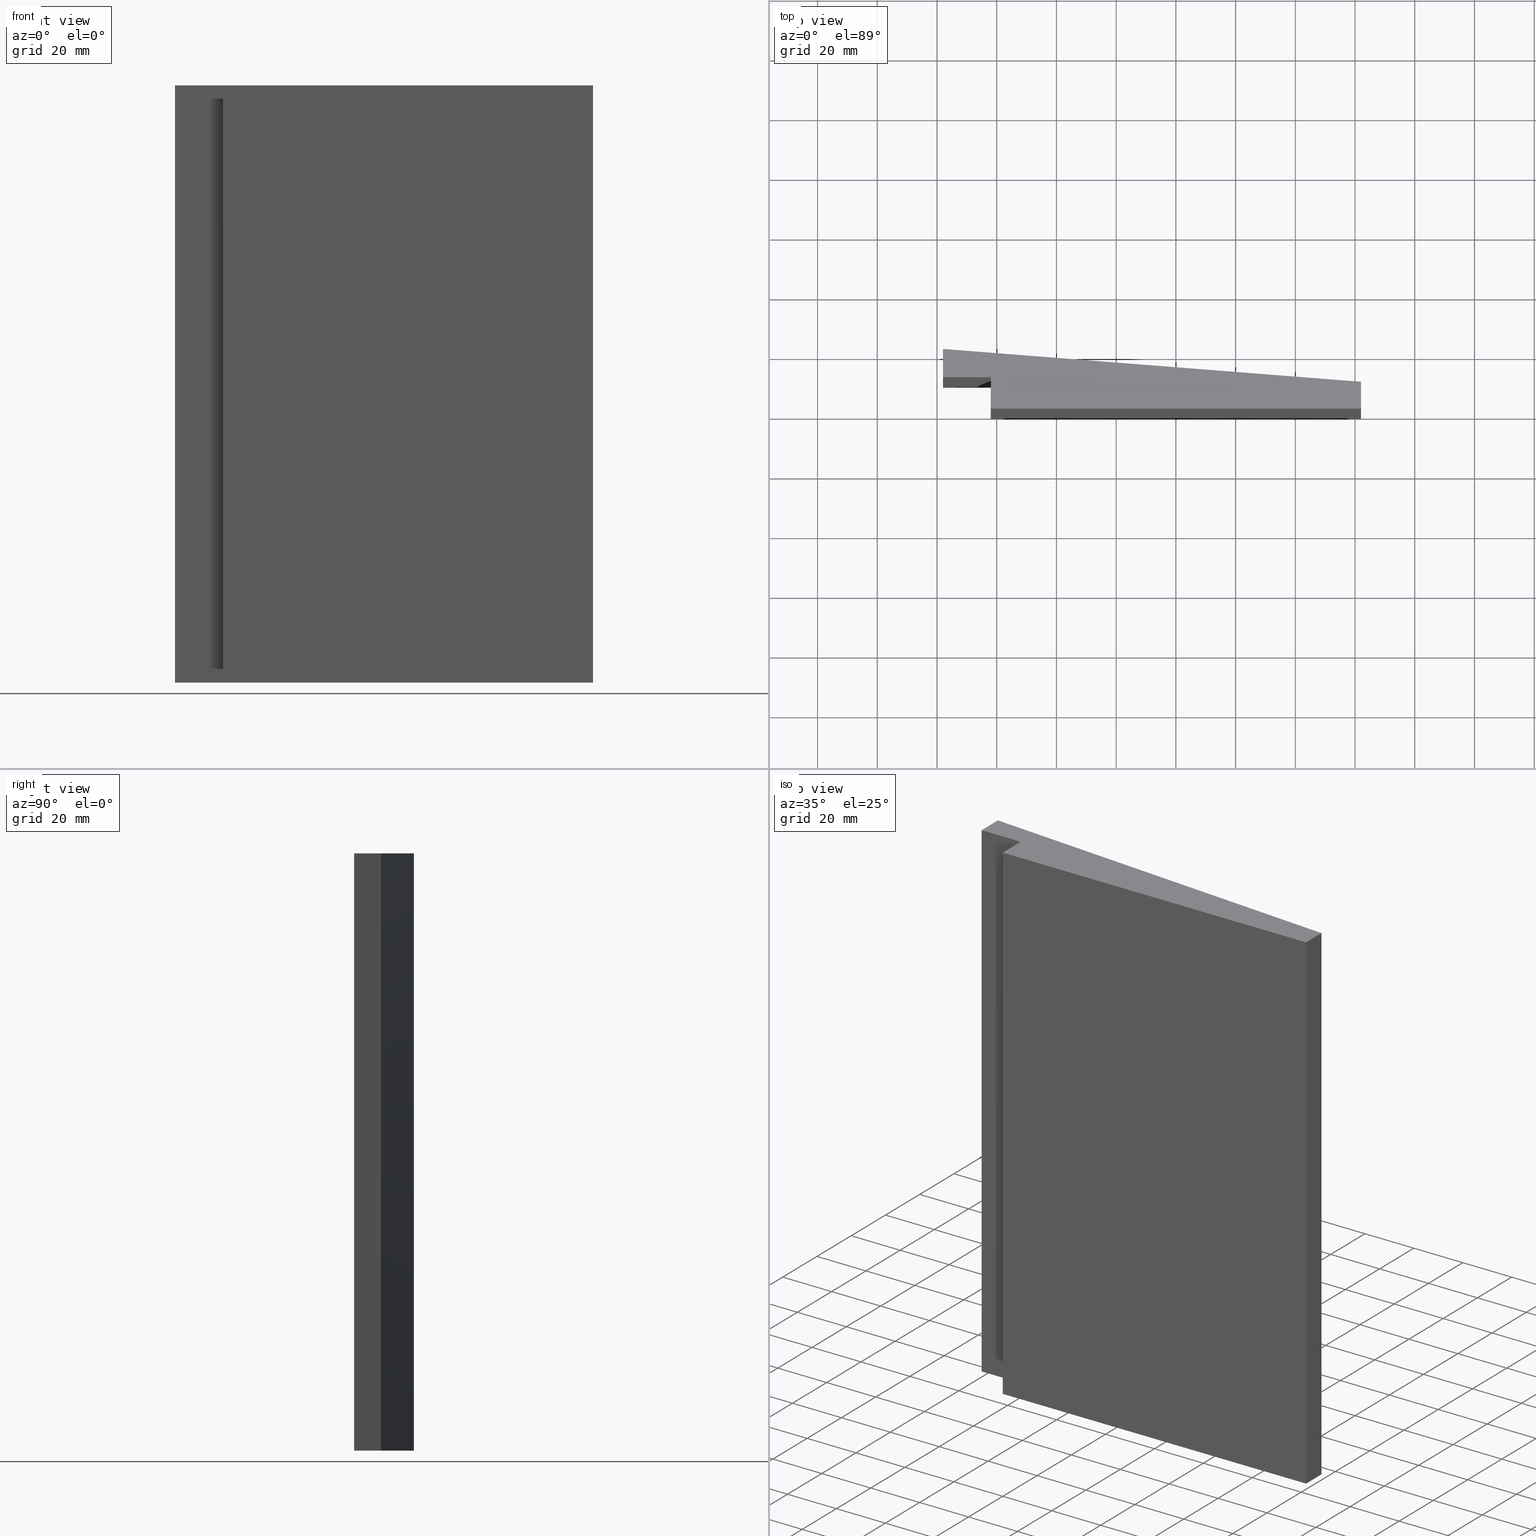
[diagram: canonical four-view strip — front | top / right | iso, engineering-drawing reading convention]
A machine part, canonical four-view strip (front | top / right | iso — engineering-drawing reading convention). The complete STEP part file that produces these views, byte-faithful:
ISO-10303-21;
HEADER;
/* Generated by software containing ST-Developer
 * from STEP Tools, Inc. (www.steptools.com) 
 */

FILE_DESCRIPTION(
/* description */ (''),
/* implementation_level */ '2;1');

FILE_NAME(
/* name */ 'PlatoWood 20x140 P04 (Revised 07.03.23) STEP.step',
/* time_stamp */ '2023-03-07T20:00:28+01:00',
/* author */ (''),
/* organization */ (''),
/* preprocessor_version */ 'ST-DEVELOPER v19.2',
/* originating_system */ 'Autodesk Translation Framework v11.17.0.187',

/* authorisation */ '');

FILE_SCHEMA (('AUTOMOTIVE_DESIGN { 1 0 10303 214 3 1 1 }'));
ENDSEC;

DATA;
#10=MECHANICAL_DESIGN_GEOMETRIC_PRESENTATION_REPRESENTATION('',(#13),#249);
#11=SHAPE_REPRESENTATION_RELATIONSHIP('SRR','None',#256,#12);
#12=ADVANCED_BREP_SHAPE_REPRESENTATION('',(#14),#248);
#13=STYLED_ITEM('',(#266),#14);
#14=MANIFOLD_SOLID_BREP('Body1',#149);
#15=FACE_OUTER_BOUND('',#23,.T.);
#16=FACE_OUTER_BOUND('',#24,.T.);
#17=FACE_OUTER_BOUND('',#25,.T.);
#18=FACE_OUTER_BOUND('',#26,.T.);
#19=FACE_OUTER_BOUND('',#27,.T.);
#20=FACE_OUTER_BOUND('',#28,.T.);
#21=FACE_OUTER_BOUND('',#29,.T.);
#22=FACE_OUTER_BOUND('',#30,.T.);
#23=EDGE_LOOP('',(#97,#98,#99,#100));
#24=EDGE_LOOP('',(#101,#102,#103,#104));
#25=EDGE_LOOP('',(#105,#106,#107,#108));
#26=EDGE_LOOP('',(#109,#110,#111,#112));
#27=EDGE_LOOP('',(#113,#114,#115,#116));
#28=EDGE_LOOP('',(#117,#118,#119,#120));
#29=EDGE_LOOP('',(#121,#122,#123,#124,#125,#126));
#30=EDGE_LOOP('',(#127,#128,#129,#130,#131,#132));
#31=LINE('',#211,#49);
#32=LINE('',#213,#50);
#33=LINE('',#215,#51);
#34=LINE('',#216,#52);
#35=LINE('',#219,#53);
#36=LINE('',#221,#54);
#37=LINE('',#222,#55);
#38=LINE('',#225,#56);
#39=LINE('',#227,#57);
#40=LINE('',#228,#58);
#41=LINE('',#231,#59);
#42=LINE('',#233,#60);
#43=LINE('',#234,#61);
#44=LINE('',#237,#62);
#45=LINE('',#239,#63);
#46=LINE('',#240,#64);
#47=LINE('',#242,#65);
#48=LINE('',#243,#66);
#49=VECTOR('',#175,10.);
#50=VECTOR('',#176,10.);
#51=VECTOR('',#177,10.);
#52=VECTOR('',#178,10.);
#53=VECTOR('',#181,10.);
#54=VECTOR('',#182,10.);
#55=VECTOR('',#183,10.);
#56=VECTOR('',#186,10.);
#57=VECTOR('',#187,10.);
#58=VECTOR('',#188,10.);
#59=VECTOR('',#191,10.);
#60=VECTOR('',#192,10.);
#61=VECTOR('',#193,10.);
#62=VECTOR('',#196,10.);
#63=VECTOR('',#197,10.);
#64=VECTOR('',#198,10.);
#65=VECTOR('',#201,10.);
#66=VECTOR('',#202,10.);
#67=VERTEX_POINT('',#209);
#68=VERTEX_POINT('',#210);
#69=VERTEX_POINT('',#212);
#70=VERTEX_POINT('',#214);
#71=VERTEX_POINT('',#218);
#72=VERTEX_POINT('',#220);
#73=VERTEX_POINT('',#224);
#74=VERTEX_POINT('',#226);
#75=VERTEX_POINT('',#230);
#76=VERTEX_POINT('',#232);
#77=VERTEX_POINT('',#236);
#78=VERTEX_POINT('',#238);
#79=EDGE_CURVE('',#67,#68,#31,.T.);
#80=EDGE_CURVE('',#68,#69,#32,.T.);
#81=EDGE_CURVE('',#70,#69,#33,.T.);
#82=EDGE_CURVE('',#67,#70,#34,.T.);
#83=EDGE_CURVE('',#71,#67,#35,.T.);
#84=EDGE_CURVE('',#72,#70,#36,.T.);
#85=EDGE_CURVE('',#71,#72,#37,.T.);
#86=EDGE_CURVE('',#73,#71,#38,.T.);
#87=EDGE_CURVE('',#74,#72,#39,.T.);
#88=EDGE_CURVE('',#73,#74,#40,.T.);
#89=EDGE_CURVE('',#75,#73,#41,.T.);
#90=EDGE_CURVE('',#76,#74,#42,.T.);
#91=EDGE_CURVE('',#75,#76,#43,.T.);
#92=EDGE_CURVE('',#77,#75,#44,.T.);
#93=EDGE_CURVE('',#78,#76,#45,.T.);
#94=EDGE_CURVE('',#77,#78,#46,.T.);
#95=EDGE_CURVE('',#68,#77,#47,.T.);
#96=EDGE_CURVE('',#69,#78,#48,.T.);
#97=ORIENTED_EDGE('',*,*,#79,.T.);
#98=ORIENTED_EDGE('',*,*,#80,.T.);
#99=ORIENTED_EDGE('',*,*,#81,.F.);
#100=ORIENTED_EDGE('',*,*,#82,.F.);
#101=ORIENTED_EDGE('',*,*,#83,.T.);
#102=ORIENTED_EDGE('',*,*,#82,.T.);
#103=ORIENTED_EDGE('',*,*,#84,.F.);
#104=ORIENTED_EDGE('',*,*,#85,.F.);
#105=ORIENTED_EDGE('',*,*,#86,.T.);
#106=ORIENTED_EDGE('',*,*,#85,.T.);
#107=ORIENTED_EDGE('',*,*,#87,.F.);
#108=ORIENTED_EDGE('',*,*,#88,.F.);
#109=ORIENTED_EDGE('',*,*,#89,.T.);
#110=ORIENTED_EDGE('',*,*,#88,.T.);
#111=ORIENTED_EDGE('',*,*,#90,.F.);
#112=ORIENTED_EDGE('',*,*,#91,.F.);
#113=ORIENTED_EDGE('',*,*,#92,.T.);
#114=ORIENTED_EDGE('',*,*,#91,.T.);
#115=ORIENTED_EDGE('',*,*,#93,.F.);
#116=ORIENTED_EDGE('',*,*,#94,.F.);
#117=ORIENTED_EDGE('',*,*,#95,.T.);
#118=ORIENTED_EDGE('',*,*,#94,.T.);
#119=ORIENTED_EDGE('',*,*,#96,.F.);
#120=ORIENTED_EDGE('',*,*,#80,.F.);
#121=ORIENTED_EDGE('',*,*,#96,.T.);
#122=ORIENTED_EDGE('',*,*,#93,.T.);
#123=ORIENTED_EDGE('',*,*,#90,.T.);
#124=ORIENTED_EDGE('',*,*,#87,.T.);
#125=ORIENTED_EDGE('',*,*,#84,.T.);
#126=ORIENTED_EDGE('',*,*,#81,.T.);
#127=ORIENTED_EDGE('',*,*,#95,.F.);
#128=ORIENTED_EDGE('',*,*,#79,.F.);
#129=ORIENTED_EDGE('',*,*,#83,.F.);
#130=ORIENTED_EDGE('',*,*,#86,.F.);
#131=ORIENTED_EDGE('',*,*,#89,.F.);
#132=ORIENTED_EDGE('',*,*,#92,.F.);
#133=PLANE('',#163);
#134=PLANE('',#164);
#135=PLANE('',#165);
#136=PLANE('',#166);
#137=PLANE('',#167);
#138=PLANE('',#168);
#139=PLANE('',#169);
#140=PLANE('',#170);
#141=ADVANCED_FACE('',(#15),#133,.T.);
#142=ADVANCED_FACE('',(#16),#134,.T.);
#143=ADVANCED_FACE('',(#17),#135,.T.);
#144=ADVANCED_FACE('',(#18),#136,.T.);
#145=ADVANCED_FACE('',(#19),#137,.T.);
#146=ADVANCED_FACE('',(#20),#138,.T.);
#147=ADVANCED_FACE('',(#21),#139,.T.);
#148=ADVANCED_FACE('',(#22),#140,.F.);
#149=CLOSED_SHELL('',(#141,#142,#143,#144,#145,#146,#147,#148));
#150=DERIVED_UNIT_ELEMENT(#152,1.);
#151=DERIVED_UNIT_ELEMENT(#251,-3.);
#152=(
MASS_UNIT()
NAMED_UNIT(*)
SI_UNIT(.KILO.,.GRAM.)
);
#153=DERIVED_UNIT((#150,#151));
#154=MEASURE_REPRESENTATION_ITEM('density measure',
POSITIVE_RATIO_MEASURE(7850.),#153);
#155=PROPERTY_DEFINITION_REPRESENTATION(#160,#157);
#156=PROPERTY_DEFINITION_REPRESENTATION(#161,#158);
#157=REPRESENTATION('material name',(#159),#248);
#158=REPRESENTATION('density',(#154),#248);
#159=DESCRIPTIVE_REPRESENTATION_ITEM('Steel','Steel');
#160=PROPERTY_DEFINITION('material property','material name',#258);
#161=PROPERTY_DEFINITION('material property','density of part',#258);
#162=AXIS2_PLACEMENT_3D('placement',#207,#171,#172);
#163=AXIS2_PLACEMENT_3D('',#208,#173,#174);
#164=AXIS2_PLACEMENT_3D('',#217,#179,#180);
#165=AXIS2_PLACEMENT_3D('',#223,#184,#185);
#166=AXIS2_PLACEMENT_3D('',#229,#189,#190);
#167=AXIS2_PLACEMENT_3D('',#235,#194,#195);
#168=AXIS2_PLACEMENT_3D('',#241,#199,#200);
#169=AXIS2_PLACEMENT_3D('',#244,#203,#204);
#170=AXIS2_PLACEMENT_3D('',#245,#205,#206);
#171=DIRECTION('axis',(0.,0.,1.));
#172=DIRECTION('refdir',(1.,0.,0.));
#173=DIRECTION('center_axis',(-6.93889390390723E-16,-1.,0.));
#174=DIRECTION('ref_axis',(1.,-6.93889390390723E-16,0.));
#175=DIRECTION('',(1.,-6.93889390390723E-16,0.));
#176=DIRECTION('',(0.,0.,1.));
#177=DIRECTION('',(1.,-6.93889390390723E-16,0.));
#178=DIRECTION('',(0.,0.,1.));
#179=DIRECTION('center_axis',(-1.,0.,0.));
#180=DIRECTION('ref_axis',(0.,-1.,0.));
#181=DIRECTION('',(0.,-1.,0.));
#182=DIRECTION('',(0.,-1.,0.));
#183=DIRECTION('',(0.,0.,1.));
#184=DIRECTION('center_axis',(0.0783300166056738,0.996927484072214,0.));
#185=DIRECTION('ref_axis',(-0.996927484072214,0.0783300166056738,0.));
#186=DIRECTION('',(-0.996927484072214,0.0783300166056738,0.));
#187=DIRECTION('',(-0.996927484072214,0.0783300166056738,0.));
#188=DIRECTION('',(0.,0.,1.));
#189=DIRECTION('center_axis',(1.,0.,0.));
#190=DIRECTION('ref_axis',(0.,1.,0.));
#191=DIRECTION('',(0.,1.,0.));
#192=DIRECTION('',(0.,1.,0.));
#193=DIRECTION('',(0.,0.,1.));
#194=DIRECTION('center_axis',(1.55227784985289E-16,-1.,0.));
#195=DIRECTION('ref_axis',(1.,1.55227784985289E-16,0.));
#196=DIRECTION('',(1.,1.55227784985289E-16,0.));
#197=DIRECTION('',(1.,1.55227784985289E-16,0.));
#198=DIRECTION('',(0.,0.,1.));
#199=DIRECTION('center_axis',(-1.,-5.07530525542929E-15,0.));
#200=DIRECTION('ref_axis',(5.07530525542929E-15,-1.,0.));
#201=DIRECTION('',(5.07530525542929E-15,-1.,0.));
#202=DIRECTION('',(5.07530525542929E-15,-1.,0.));
#203=DIRECTION('center_axis',(0.,0.,1.));
#204=DIRECTION('ref_axis',(1.,0.,0.));
#205=DIRECTION('center_axis',(0.,0.,1.));
#206=DIRECTION('ref_axis',(1.,0.,0.));
#207=CARTESIAN_POINT('',(0.,0.,0.));
#208=CARTESIAN_POINT('Origin',(-78.,10.5,0.));
#209=CARTESIAN_POINT('',(-78.,10.5,0.));
#210=CARTESIAN_POINT('',(-62.,10.5,0.));
#211=CARTESIAN_POINT('',(-78.,10.5,0.));
#212=CARTESIAN_POINT('',(-62.,10.5,200.));
#213=CARTESIAN_POINT('',(-62.,10.5,0.));
#214=CARTESIAN_POINT('',(-78.,10.5,200.));
#215=CARTESIAN_POINT('',(-78.,10.5,200.));
#216=CARTESIAN_POINT('',(-78.,10.5,0.));
#217=CARTESIAN_POINT('Origin',(-78.,20.,0.));
#218=CARTESIAN_POINT('',(-78.,20.,0.));
#219=CARTESIAN_POINT('',(-78.,20.,0.));
#220=CARTESIAN_POINT('',(-78.,20.,200.));
#221=CARTESIAN_POINT('',(-78.,20.,200.));
#222=CARTESIAN_POINT('',(-78.,20.,0.));
#223=CARTESIAN_POINT('Origin',(62.,9.00000000000001,0.));
#224=CARTESIAN_POINT('',(62.,9.00000000000001,0.));
#225=CARTESIAN_POINT('',(62.,9.00000000000001,0.));
#226=CARTESIAN_POINT('',(62.,9.00000000000001,200.));
#227=CARTESIAN_POINT('',(62.,9.00000000000001,200.));
#228=CARTESIAN_POINT('',(62.,9.00000000000001,0.));
#229=CARTESIAN_POINT('Origin',(62.,1.11022302462516E-14,0.));
#230=CARTESIAN_POINT('',(62.,1.11022302462516E-14,0.));
#231=CARTESIAN_POINT('',(62.,1.11022302462516E-14,0.));
#232=CARTESIAN_POINT('',(62.,1.11022302462516E-14,200.));
#233=CARTESIAN_POINT('',(62.,1.11022302462516E-14,200.));
#234=CARTESIAN_POINT('',(62.,1.11022302462516E-14,0.));
#235=CARTESIAN_POINT('Origin',(-62.,-8.14601509192424E-15,0.));
#236=CARTESIAN_POINT('',(-62.,-8.88178419700125E-15,0.));
#237=CARTESIAN_POINT('',(-62.,-8.14601509192424E-15,0.));
#238=CARTESIAN_POINT('',(-62.,-8.88178419700125E-15,200.));
#239=CARTESIAN_POINT('',(-62.,-8.14601509192424E-15,200.));
#240=CARTESIAN_POINT('',(-62.,-8.88178419700125E-15,0.));
#241=CARTESIAN_POINT('Origin',(-62.,10.5,0.));
#242=CARTESIAN_POINT('',(-62.,10.5,0.));
#243=CARTESIAN_POINT('',(-62.,10.5,200.));
#244=CARTESIAN_POINT('Origin',(-8.00000000000002,9.99999999999999,200.));
#245=CARTESIAN_POINT('Origin',(-8.00000000000002,9.99999999999999,0.));
#246=UNCERTAINTY_MEASURE_WITH_UNIT(LENGTH_MEASURE(0.01),#250,
'DISTANCE_ACCURACY_VALUE',
'Maximum model space distance between geometric entities at asserted c
onnectivities');
#247=UNCERTAINTY_MEASURE_WITH_UNIT(LENGTH_MEASURE(0.01),#250,
'DISTANCE_ACCURACY_VALUE',
'Maximum model space distance between geometric entities at asserted c
onnectivities');
#248=(
GEOMETRIC_REPRESENTATION_CONTEXT(3)
GLOBAL_UNCERTAINTY_ASSIGNED_CONTEXT((#246))
GLOBAL_UNIT_ASSIGNED_CONTEXT((#250,#252,#253))
REPRESENTATION_CONTEXT('','3D')
);
#249=(
GEOMETRIC_REPRESENTATION_CONTEXT(3)
GLOBAL_UNCERTAINTY_ASSIGNED_CONTEXT((#247))
GLOBAL_UNIT_ASSIGNED_CONTEXT((#250,#252,#253))
REPRESENTATION_CONTEXT('','3D')
);
#250=(
LENGTH_UNIT()
NAMED_UNIT(*)
SI_UNIT(.MILLI.,.METRE.)
);
#251=(
LENGTH_UNIT()
NAMED_UNIT(*)
SI_UNIT($,.METRE.)
);
#252=(
NAMED_UNIT(*)
PLANE_ANGLE_UNIT()
SI_UNIT($,.RADIAN.)
);
#253=(
NAMED_UNIT(*)
SI_UNIT($,.STERADIAN.)
SOLID_ANGLE_UNIT()
);
#254=SHAPE_DEFINITION_REPRESENTATION(#255,#256);
#255=PRODUCT_DEFINITION_SHAPE('',$,#258);
#256=SHAPE_REPRESENTATION('',(#162),#248);
#257=PRODUCT_DEFINITION_CONTEXT('part definition',#262,'design');
#258=PRODUCT_DEFINITION('PlatoWood 20x140 P04',
'PlatoWood 20x140 P04 v6',#259,#257);
#259=PRODUCT_DEFINITION_FORMATION('',$,#264);
#260=PRODUCT_RELATED_PRODUCT_CATEGORY('PlatoWood 20x140 P04 v6',
'PlatoWood 20x140 P04 v6',(#264));
#261=APPLICATION_PROTOCOL_DEFINITION('international standard',
'automotive_design',2009,#262);
#262=APPLICATION_CONTEXT(
'Core Data for Automotive Mechanical Design Process');
#263=PRODUCT_CONTEXT('part definition',#262,'mechanical');
#264=PRODUCT('PlatoWood 20x140 P04','PlatoWood 20x140 P04 v6',$,(#263));
#265=PRESENTATION_STYLE_ASSIGNMENT((#267));
#266=PRESENTATION_STYLE_ASSIGNMENT((#268));
#267=SURFACE_STYLE_USAGE(.BOTH.,#269);
#268=SURFACE_STYLE_USAGE(.BOTH.,#270);
#269=SURFACE_SIDE_STYLE('',(#271));
#270=SURFACE_SIDE_STYLE('',(#272));
#271=SURFACE_STYLE_FILL_AREA(#273);
#272=SURFACE_STYLE_FILL_AREA(#274);
#273=FILL_AREA_STYLE('Steel - Satin',(#275));
#274=FILL_AREA_STYLE('3D Mahogany - Unfinished',(#276));
#275=FILL_AREA_STYLE_COLOUR('Steel - Satin',#277);
#276=FILL_AREA_STYLE_COLOUR('3D Mahogany - Unfinished',#278);
#277=COLOUR_RGB('Steel - Satin',0.627450980392157,0.627450980392157,0.627450980392157);
#278=COLOUR_RGB('3D Mahogany - Unfinished',0.568627450980392,0.407843137254902,
0.313725490196078);
ENDSEC;
END-ISO-10303-21;
